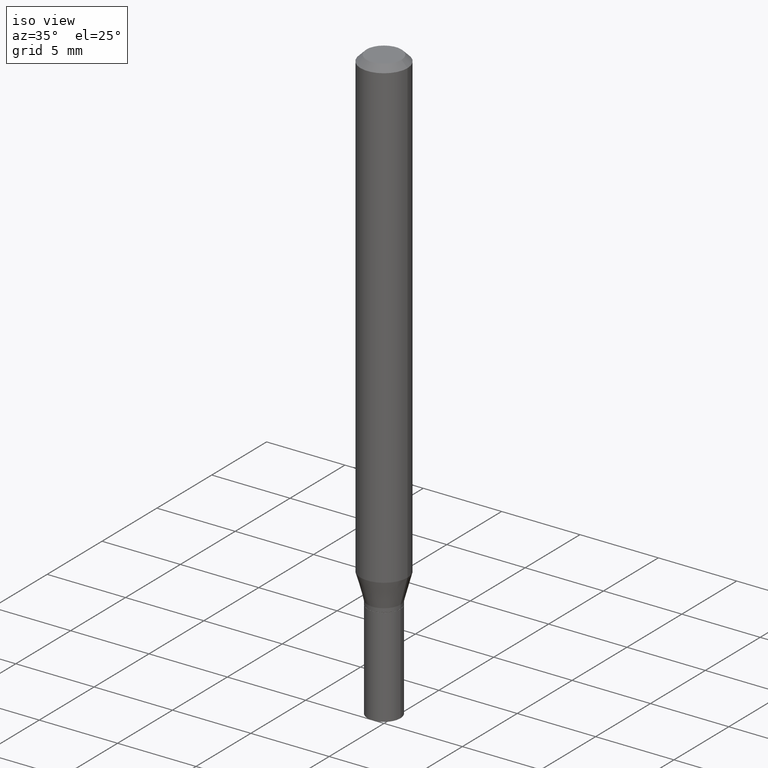
[diagram: clean part render]
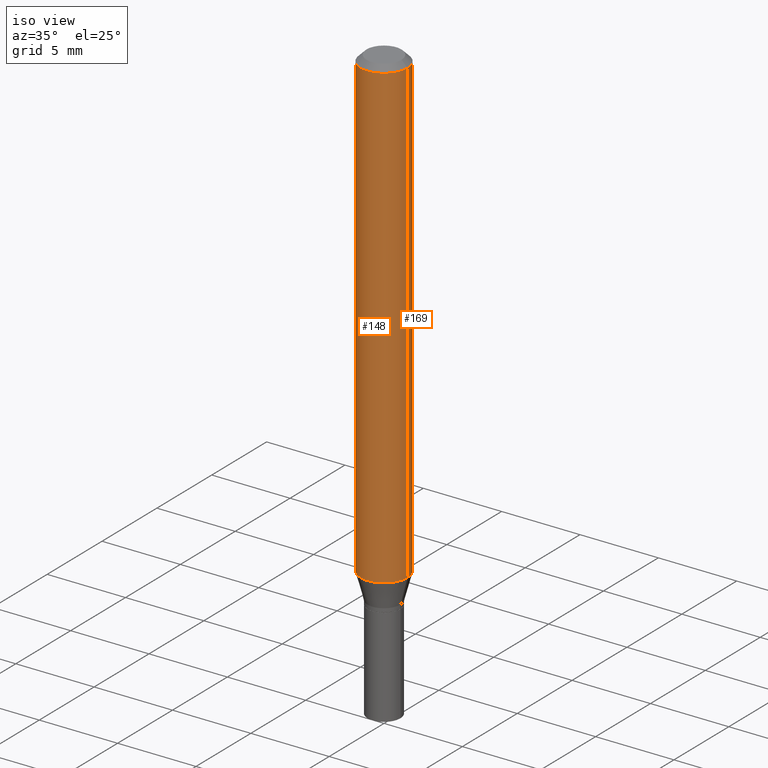
[diagram: same view with one multi-face feature highlighted, each face labeled with its STEP entity id]
A machine part, iso view. The highlighted faces form ONE feature: a constant-radius fillet chain: 2 tangent blend faces with common blend radius 1.4999 mm. The faces share edges in the B-rep.
Their STEP definitions:
[1] entity #169 (Cylinder):
#2 = DIRECTION ( 'NONE',  ( -2.445468806185136877E-29, 3.491481338843145188E-15, 1.000000000000000000 ) ) ;
#6 = CARTESIAN_POINT ( 'NONE',  ( 0.05904999999999999832, -4.647161662000212105E-16, -0.01499999999999999944 ) ) ;
#33 = EDGE_CURVE ( 'NONE', #136, #134, #428, .T. ) ;
#35 = CARTESIAN_POINT ( 'NONE',  ( 3.668203209277705088E-31, -5.237222008264718399E-17, -0.01499999999999999944 ) ) ;
#38 = CARTESIAN_POINT ( 'NONE',  ( 0.000000000000000000, 0.000000000000000000, 0.000000000000000000 ) ) ;
#59 = ORIENTED_EDGE ( 'NONE', *, *, #33, .F. ) ;
#71 = ORIENTED_EDGE ( 'NONE', *, *, #116, .T. ) ;
#75 = CARTESIAN_POINT ( 'NONE',  ( -0.05904999999999999832, -3.672589732376084580E-15, -1.172042700706029450 ) ) ;
#92 = VECTOR ( 'NONE', #2, 39.37007874015748143 ) ;
#107 = DIRECTION ( 'NONE',  ( -2.445468806185136877E-29, 3.491481338843145188E-15, 1.000000000000000000 ) ) ;
#116 = EDGE_CURVE ( 'NONE', #217, #405, #222, .T. ) ;
#118 = EDGE_CURVE ( 'NONE', #134, #405, #299, .T. ) ;
#132 = CARTESIAN_POINT ( 'NONE',  ( 2.866193864093577193E-29, -4.092165217842424073E-15, -1.172042700706029450 ) ) ;
#134 = VERTEX_POINT ( 'NONE', #6 ) ;
#136 = VERTEX_POINT ( 'NONE', #292 ) ;
#145 = DIRECTION ( 'NONE',  ( 1.000000000000000000, -6.982962677686266711E-15, 0.000000000000000000 ) ) ;
#154 = DIRECTION ( 'NONE',  ( -2.445468806185136597E-29, 3.491481338843145583E-15, 1.000000000000000000 ) ) ;
#169 = ADVANCED_FACE ( 'NONE', ( #401 ), #224, .T. ) ;
#183 = CARTESIAN_POINT ( 'NONE',  ( -0.05904999999999999832, 4.195754854663391478E-16, -2.904631170795521892E-30 ) ) ;
#202 = VECTOR ( 'NONE', #107, 39.37007874015748143 ) ;
#217 = VERTEX_POINT ( 'NONE', #75 ) ;
#222 = LINE ( 'NONE', #183, #92 ) ;
#224 = CYLINDRICAL_SURFACE ( 'NONE', #369, 0.05904999999999999832 ) ;
#292 = CARTESIAN_POINT ( 'NONE',  ( 0.05904999999999999832, -4.504509163959798204E-15, -1.172042700706029450 ) ) ;
#299 = CIRCLE ( 'NONE', #363, 0.05904999999999999832 ) ;
#333 = EDGE_CURVE ( 'NONE', #136, #217, #464, .T. ) ;
#342 = DIRECTION ( 'NONE',  ( 1.000000000000000000, -6.982962677686265133E-15, 0.000000000000000000 ) ) ;
#352 = ORIENTED_EDGE ( 'NONE', *, *, #118, .F. ) ;
#354 = ORIENTED_EDGE ( 'NONE', *, *, #333, .T. ) ;
#357 = EDGE_LOOP ( 'NONE', ( #354, #71, #352, #59 ) ) ;
#363 = AXIS2_PLACEMENT_3D ( 'NONE', #35, #367, #145 ) ;
#367 = DIRECTION ( 'NONE',  ( -2.445468806185136597E-29, 3.491481338843145583E-15, 1.000000000000000000 ) ) ;
#369 = AXIS2_PLACEMENT_3D ( 'NONE', #38, #154, #440 ) ;
#385 = CARTESIAN_POINT ( 'NONE',  ( 0.05904999999999999832, -4.123439461173740327E-16, 2.879382386107500220E-30 ) ) ;
#401 = FACE_OUTER_BOUND ( 'NONE', #357, .T. ) ;
#405 = VERTEX_POINT ( 'NONE', #406 ) ;
#406 = CARTESIAN_POINT ( 'NONE',  ( -0.05904999999999999832, -1.652693233496196478E-15, -0.01499999999999999944 ) ) ;
#428 = LINE ( 'NONE', #385, #202 ) ;
#437 = AXIS2_PLACEMENT_3D ( 'NONE', #132, #446, #342 ) ;
#440 = DIRECTION ( 'NONE',  ( 1.000000000000000000, -6.982962677686266711E-15, 4.876176775795936353E-29 ) ) ;
#446 = DIRECTION ( 'NONE',  ( -2.445468806185136597E-29, 3.491481338843145583E-15, 1.000000000000000000 ) ) ;
#464 = CIRCLE ( 'NONE', #437, 0.05904999999999999832 ) ;
[2] entity #148 (Cylinder):
#2 = DIRECTION ( 'NONE',  ( -2.445468806185136877E-29, 3.491481338843145188E-15, 1.000000000000000000 ) ) ;
#6 = CARTESIAN_POINT ( 'NONE',  ( 0.05904999999999999832, -4.647161662000212105E-16, -0.01499999999999999944 ) ) ;
#33 = EDGE_CURVE ( 'NONE', #136, #134, #428, .T. ) ;
#62 = ORIENTED_EDGE ( 'NONE', *, *, #33, .T. ) ;
#75 = CARTESIAN_POINT ( 'NONE',  ( -0.05904999999999999832, -3.672589732376084580E-15, -1.172042700706029450 ) ) ;
#88 = ORIENTED_EDGE ( 'NONE', *, *, #228, .F. ) ;
#92 = VECTOR ( 'NONE', #2, 39.37007874015748143 ) ;
#94 = CARTESIAN_POINT ( 'NONE',  ( 2.866193864093577193E-29, -4.092165217842424073E-15, -1.172042700706029450 ) ) ;
#97 = ORIENTED_EDGE ( 'NONE', *, *, #116, .F. ) ;
#107 = DIRECTION ( 'NONE',  ( -2.445468806185136877E-29, 3.491481338843145188E-15, 1.000000000000000000 ) ) ;
#109 = DIRECTION ( 'NONE',  ( 1.000000000000000000, -6.982962677686266711E-15, 4.876176775795936353E-29 ) ) ;
#116 = EDGE_CURVE ( 'NONE', #217, #405, #222, .T. ) ;
#119 = DIRECTION ( 'NONE',  ( -2.445468806185136597E-29, 3.491481338843145583E-15, 1.000000000000000000 ) ) ;
#129 = ORIENTED_EDGE ( 'NONE', *, *, #386, .T. ) ;
#134 = VERTEX_POINT ( 'NONE', #6 ) ;
#136 = VERTEX_POINT ( 'NONE', #292 ) ;
#148 = ADVANCED_FACE ( 'NONE', ( #290 ), #465, .T. ) ;
#151 = AXIS2_PLACEMENT_3D ( 'NONE', #362, #119, #109 ) ;
#182 = CARTESIAN_POINT ( 'NONE',  ( 3.668203209277705088E-31, -5.237222008264718399E-17, -0.01499999999999999944 ) ) ;
#183 = CARTESIAN_POINT ( 'NONE',  ( -0.05904999999999999832, 4.195754854663391478E-16, -2.904631170795521892E-30 ) ) ;
#196 = EDGE_LOOP ( 'NONE', ( #97, #129, #62, #88 ) ) ;
#202 = VECTOR ( 'NONE', #107, 39.37007874015748143 ) ;
#217 = VERTEX_POINT ( 'NONE', #75 ) ;
#222 = LINE ( 'NONE', #183, #92 ) ;
#228 = EDGE_CURVE ( 'NONE', #405, #134, #410, .T. ) ;
#266 = DIRECTION ( 'NONE',  ( -2.445468806185136597E-29, 3.491481338843145583E-15, 1.000000000000000000 ) ) ;
#275 = DIRECTION ( 'NONE',  ( 1.000000000000000000, -6.982962677686265133E-15, 0.000000000000000000 ) ) ;
#290 = FACE_OUTER_BOUND ( 'NONE', #196, .T. ) ;
#292 = CARTESIAN_POINT ( 'NONE',  ( 0.05904999999999999832, -4.504509163959798204E-15, -1.172042700706029450 ) ) ;
#323 = DIRECTION ( 'NONE',  ( 1.000000000000000000, -6.982962677686266711E-15, 0.000000000000000000 ) ) ;
#362 = CARTESIAN_POINT ( 'NONE',  ( 0.000000000000000000, 0.000000000000000000, 0.000000000000000000 ) ) ;
#366 = DIRECTION ( 'NONE',  ( -2.445468806185136597E-29, 3.491481338843145583E-15, 1.000000000000000000 ) ) ;
#383 = AXIS2_PLACEMENT_3D ( 'NONE', #182, #366, #323 ) ;
#385 = CARTESIAN_POINT ( 'NONE',  ( 0.05904999999999999832, -4.123439461173740327E-16, 2.879382386107500220E-30 ) ) ;
#386 = EDGE_CURVE ( 'NONE', #217, #136, #438, .T. ) ;
#405 = VERTEX_POINT ( 'NONE', #406 ) ;
#406 = CARTESIAN_POINT ( 'NONE',  ( -0.05904999999999999832, -1.652693233496196478E-15, -0.01499999999999999944 ) ) ;
#410 = CIRCLE ( 'NONE', #383, 0.05904999999999999832 ) ;
#428 = LINE ( 'NONE', #385, #202 ) ;
#429 = AXIS2_PLACEMENT_3D ( 'NONE', #94, #266, #275 ) ;
#438 = CIRCLE ( 'NONE', #429, 0.05904999999999999832 ) ;
#465 = CYLINDRICAL_SURFACE ( 'NONE', #151, 0.05904999999999999832 ) ;